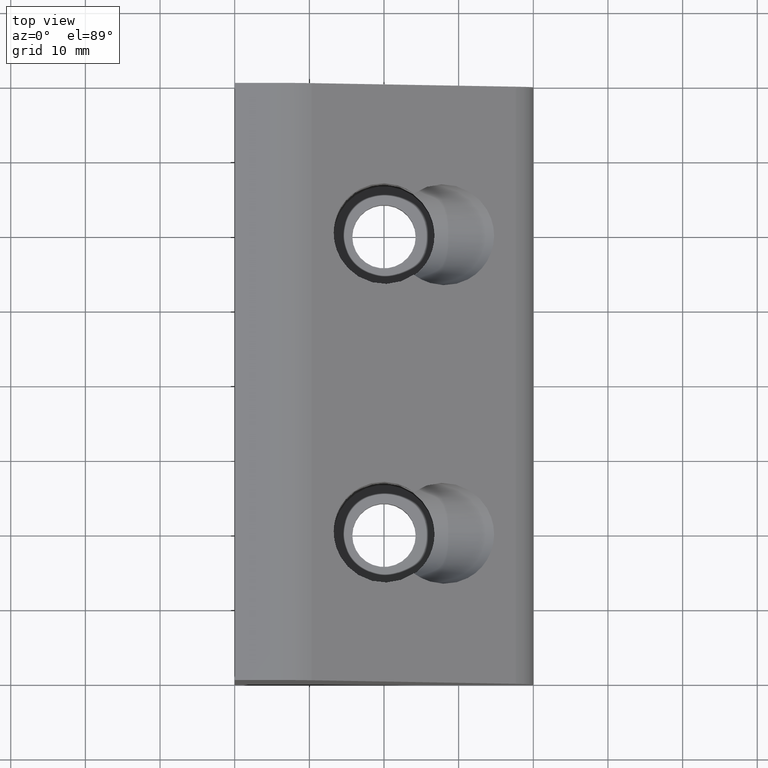
[diagram: clean part render]
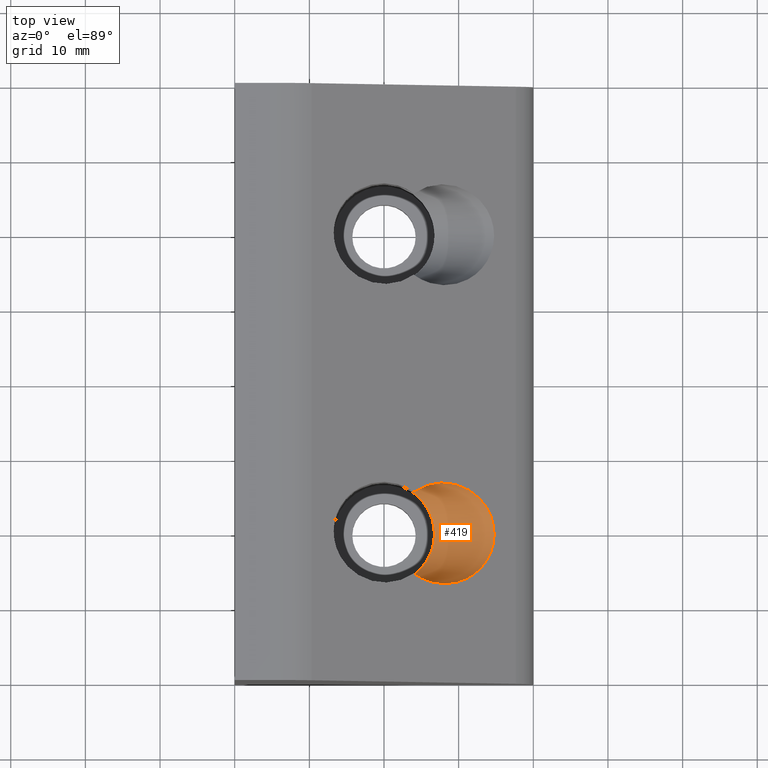
[diagram: same view with one face highlighted and labeled with its STEP entity id]
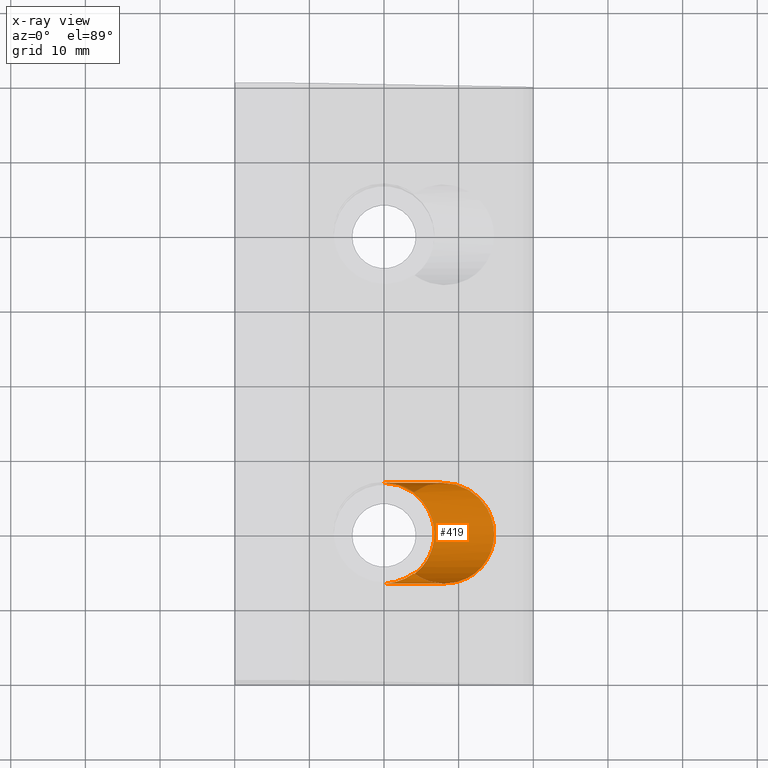
[diagram: x-ray of the same camera — body ghosted, the highlighted face saturated]
A machine part, top view. The second image highlights one B-rep face of the part: STEP entity #419.
The next image is the same camera in x-ray: the body ghosted, the highlighted face saturated — about 0% of this face is hidden behind the body in this view.
In plain terms, the highlighted cylindrical surface (partial cylindrical patch) has radius 6.75 mm, axis along (-1, 0, 0).
Its self-contained STEP definition (entity closure, byte-faithful):
#46=FACE_OUTER_BOUND('',#71,.T.);
#71=EDGE_LOOP('',(#327,#328,#329,#330,#331));
#165=ELLIPSE('',#466,9.5459415460184,6.75);
#167=ELLIPSE('',#468,9.5459415460184,6.75);
#176=ELLIPSE('',#493,9.54594154600528,6.74999999998405);
#177=ELLIPSE('',#494,9.54594154601883,6.75000000000078);
#178=ELLIPSE('',#496,9.54594154602177,6.75000000000364);
#186=VERTEX_POINT('',#679);
#187=VERTEX_POINT('',#680);
#188=VERTEX_POINT('',#682);
#202=VERTEX_POINT('',#727);
#203=VERTEX_POINT('',#728);
#226=EDGE_CURVE('',#186,#187,#165,.T.);
#228=EDGE_CURVE('',#187,#188,#167,.T.);
#252=EDGE_CURVE('',#188,#202,#176,.T.);
#253=EDGE_CURVE('',#203,#186,#177,.T.);
#254=EDGE_CURVE('',#203,#202,#178,.T.);
#327=ORIENTED_EDGE('',*,*,#254,.F.);
#328=ORIENTED_EDGE('',*,*,#253,.T.);
#329=ORIENTED_EDGE('',*,*,#226,.T.);
#330=ORIENTED_EDGE('',*,*,#228,.T.);
#331=ORIENTED_EDGE('',*,*,#252,.T.);
#405=CYLINDRICAL_SURFACE('',#495,6.75);
#419=ADVANCED_FACE('',(#46),#405,.F.);
#466=AXIS2_PLACEMENT_3D('',#681,#538,#539);
#468=AXIS2_PLACEMENT_3D('',#684,#542,#543);
#493=AXIS2_PLACEMENT_3D('',#730,#598,#599);
#494=AXIS2_PLACEMENT_3D('',#731,#600,#601);
#495=AXIS2_PLACEMENT_3D('',#732,#602,#603);
#496=AXIS2_PLACEMENT_3D('',#733,#604,#605);
#538=DIRECTION('center_axis',(-0.707106781186547,3.48909435263061E-16,-0.707106781186548));
#539=DIRECTION('ref_axis',(0.707106781186548,1.73988069209882E-15,-0.707106781186547));
#542=DIRECTION('center_axis',(-0.707106781186547,3.48909435263061E-16,-0.707106781186548));
#543=DIRECTION('ref_axis',(0.707106781186548,1.73988069209882E-15,-0.707106781186547));
#598=DIRECTION('center_axis',(-0.707106781186548,8.0427048423612E-15,0.707106781186547));
#599=DIRECTION('ref_axis',(0.707106781186547,1.13829514808927E-12,0.707106781186548));
#600=DIRECTION('center_axis',(-0.707106781186548,-4.82562290541674E-15,
0.707106781186547));
#601=DIRECTION('ref_axis',(0.707106781186547,2.2503567120596E-14,0.707106781186548));
#602=DIRECTION('center_axis',(-1.,0.,0.));
#603=DIRECTION('ref_axis',(0.,-1.83697019872103E-16,-1.));
#604=DIRECTION('center_axis',(-0.707106781186552,-3.61921717906261E-14,
-0.707106781186543));
#605=DIRECTION('ref_axis',(0.707106781186543,3.65393236660301E-13,-0.707106781186552));
#679=CARTESIAN_POINT('',(20.,-13.25,20.));
#680=CARTESIAN_POINT('',(26.75,-20.,13.25));
#681=CARTESIAN_POINT('Origin',(20.,-20.,20.));
#682=CARTESIAN_POINT('',(20.,-26.75,20.));
#684=CARTESIAN_POINT('Origin',(20.,-20.,20.));
#727=CARTESIAN_POINT('',(24.,-25.4371407927329,24.));
#728=CARTESIAN_POINT('',(24.,-14.5628592072671,24.));
#730=CARTESIAN_POINT('Origin',(20.0000000000057,-20.000000000016,20.0000000000056));
#731=CARTESIAN_POINT('Origin',(19.9999999999999,-20.0000000000008,19.9999999999999));
#732=CARTESIAN_POINT('Origin',(28.00000001,-20.,20.));
#733=CARTESIAN_POINT('Origin',(28.0000000000017,-19.9999999999964,19.999999999998));